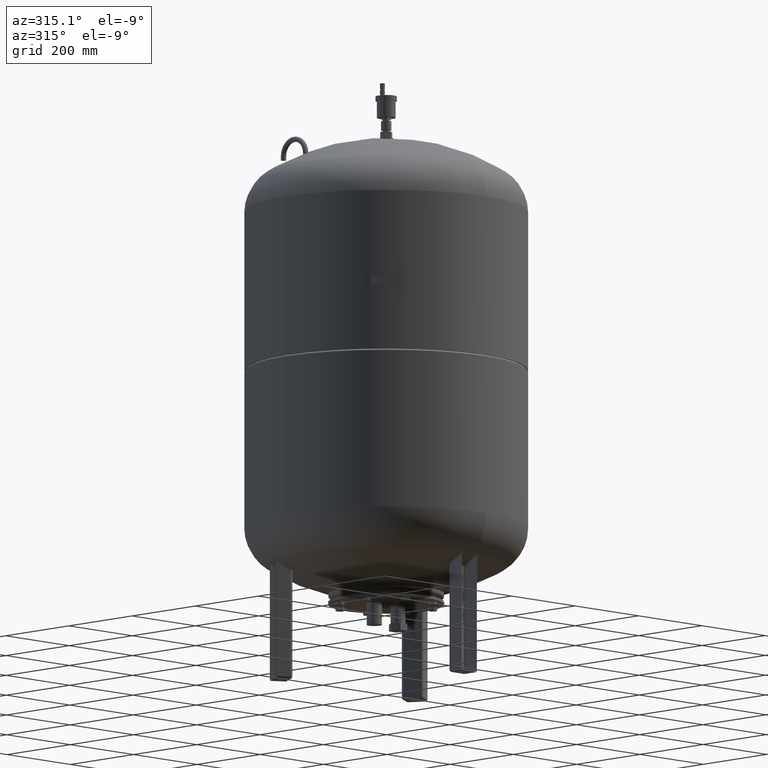
[diagram: clean part render]
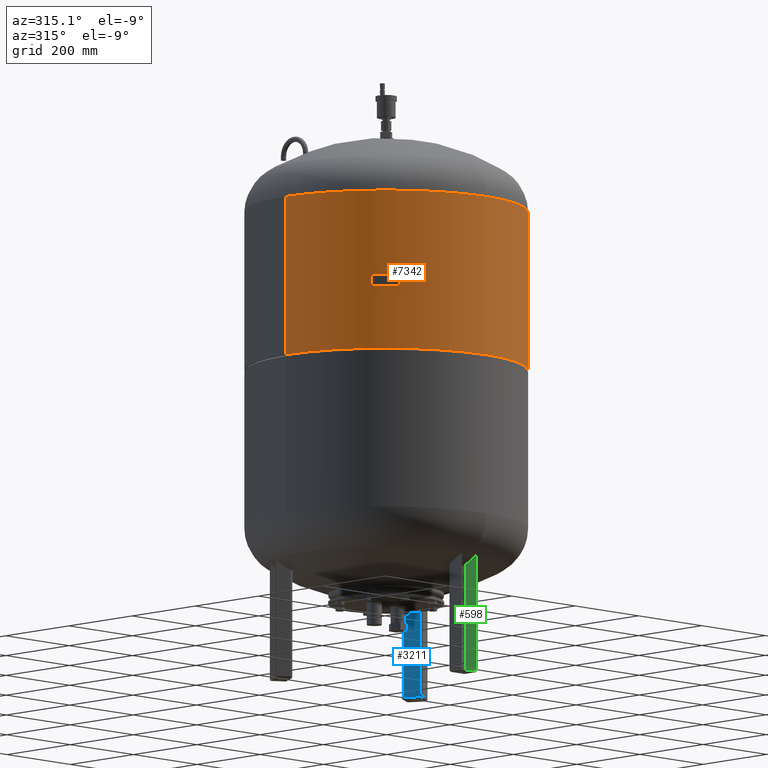
[diagram: same view with three faces highlighted in distinct colors, each labeled with its STEP entity id]
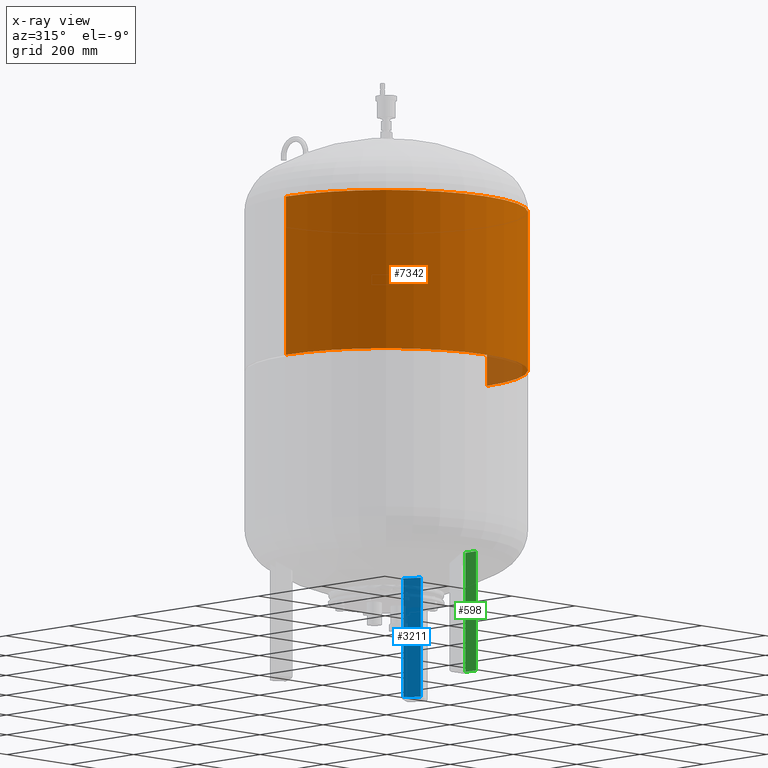
[diagram: x-ray of the same camera — body ghosted, the three highlighted faces saturated]
A machine part, auxiliary view with three faces highlighted in distinct colors.
The next image is the same camera in x-ray (body ghosted, the three faces saturated) — at least one of them is partly hidden behind the body in this view.
Their STEP definitions:

[orange] entity #7342 — the highlighted cylindrical surface (partial cylindrical patch) has radius 317 mm, axis along (0, 0, 1).
#7301=CARTESIAN_POINT('',(8.343982E-015,0.0,889.0));
#7302=DIRECTION('',(4.661443E-017,0.0,1.0));
#7303=DIRECTION('',(1.0,0.0,0.0));
#7304=AXIS2_PLACEMENT_3D('',#7301,#7302,#7303);
#7305=CYLINDRICAL_SURFACE('',#7304,317.0);
#7306=CARTESIAN_POINT('',(317.0,0.0,1068.0));
#7307=VERTEX_POINT('',#7306);
#7308=CARTESIAN_POINT('',(316.999999999999940,0.0,710.0));
#7309=VERTEX_POINT('',#7308);
#7310=CARTESIAN_POINT('',(317.0,0.0,1068.0));
#7311=DIRECTION('',(0.0,0.0,-1.0));
#7312=VECTOR('',#7311,358.0);
#7313=LINE('',#7310,#7312);
#7314=EDGE_CURVE('',#7307,#7309,#7313,.T.);
#7315=ORIENTED_EDGE('',*,*,#7314,.F.);
#7316=CARTESIAN_POINT('',(-317.0,-3.882002E-014,1068.0));
#7317=VERTEX_POINT('',#7316);
#7318=CARTESIAN_POINT('',(1.668796E-014,0.0,1068.0));
#7319=DIRECTION('',(0.0,0.0,1.0));
#7320=DIRECTION('',(1.0,0.0,0.0));
#7321=AXIS2_PLACEMENT_3D('',#7318,#7319,#7320);
#7322=CIRCLE('',#7321,317.0);
#7323=EDGE_CURVE('',#7317,#7307,#7322,.T.);
#7324=ORIENTED_EDGE('',*,*,#7323,.F.);
#7325=CARTESIAN_POINT('',(-317.0,-3.882002E-014,710.0));
#7326=VERTEX_POINT('',#7325);
#7327=CARTESIAN_POINT('',(-317.0,-3.882002E-014,1068.0));
#7328=DIRECTION('',(0.0,0.0,-1.0));
#7329=VECTOR('',#7328,358.0);
#7330=LINE('',#7327,#7329);
#7331=EDGE_CURVE('',#7317,#7326,#7330,.T.);
#7332=ORIENTED_EDGE('',*,*,#7331,.T.);
#7333=CARTESIAN_POINT('',(0.0,0.0,710.0));
#7334=DIRECTION('',(0.0,0.0,1.0));
#7335=DIRECTION('',(1.0,0.0,0.0));
#7336=AXIS2_PLACEMENT_3D('',#7333,#7334,#7335);
#7337=CIRCLE('',#7336,316.999999999999940);
#7338=EDGE_CURVE('',#7326,#7309,#7337,.T.);
#7339=ORIENTED_EDGE('',*,*,#7338,.T.);
#7340=EDGE_LOOP('',(#7315,#7324,#7332,#7339));
#7341=FACE_OUTER_BOUND('',#7340,.T.);
#7342=ADVANCED_FACE('',(#7341),#7305,.T.);

[blue] entity #3211 — the highlighted planar face has unit normal (-0.866, -0.5, -0).
#2395=CARTESIAN_POINT('',(182.690652342037650,128.570508075688760,274.0));
#2396=VERTEX_POINT('',#2395);
#2404=CARTESIAN_POINT('',(202.690652342037650,93.929491924311236,274.0));
#2405=VERTEX_POINT('',#2404);
#2406=CARTESIAN_POINT('',(202.690652342037650,93.929491924311236,274.0));
#2407=DIRECTION('',(-0.500000000000000,0.866025403784438,0.0));
#2408=VECTOR('',#2407,39.999999999999986);
#2409=LINE('',#2406,#2408);
#2410=EDGE_CURVE('',#2405,#2396,#2409,.T.);
#3076=CARTESIAN_POINT('',(202.690652342037650,93.929491924311222,4.999999999999996));
#3077=VERTEX_POINT('',#3076);
#3085=CARTESIAN_POINT('',(182.690652342037650,128.570508075688760,5.000000000000004));
#3086=VERTEX_POINT('',#3085);
#3087=CARTESIAN_POINT('',(202.690652342037650,93.929491924311222,4.999999999999996));
#3088=DIRECTION('',(-0.500000000000000,0.866025403784439,1.776357E-016));
#3089=VECTOR('',#3088,40.0);
#3090=LINE('',#3087,#3089);
#3091=EDGE_CURVE('',#3077,#3086,#3090,.T.);
#3179=CARTESIAN_POINT('',(182.690652342037650,128.570508075688760,5.000000000000004));
#3180=DIRECTION('',(0.0,0.0,1.0));
#3181=VECTOR('',#3180,269.0);
#3182=LINE('',#3179,#3181);
#3183=EDGE_CURVE('',#3086,#2396,#3182,.T.);
#3195=CARTESIAN_POINT('',(205.190652342037650,89.599364905389038,-4.592425E-015));
#3196=DIRECTION('',(-0.866025403784439,-0.500000000000000,-5.710451E-032));
#3197=DIRECTION('',(0.500000000000000,-0.866025403784439,-1.836970E-016));
#3198=AXIS2_PLACEMENT_3D('',#3195,#3196,#3197);
#3199=PLANE('',#3198);
#3200=ORIENTED_EDGE('',*,*,#3091,.F.);
#3201=CARTESIAN_POINT('',(202.690652342037650,93.929491924311222,4.999999999999996));
#3202=DIRECTION('',(0.0,0.0,1.0));
#3203=VECTOR('',#3202,269.0);
#3204=LINE('',#3201,#3203);
#3205=EDGE_CURVE('',#3077,#2405,#3204,.T.);
#3206=ORIENTED_EDGE('',*,*,#3205,.T.);
#3207=ORIENTED_EDGE('',*,*,#2410,.T.);
#3208=ORIENTED_EDGE('',*,*,#3183,.F.);
#3209=EDGE_LOOP('',(#3200,#3206,#3207,#3208));
#3210=FACE_OUTER_BOUND('',#3209,.T.);
#3211=ADVANCED_FACE('',(#3210),#3199,.T.);

[green] entity #598 — the highlighted planar face has unit normal (1, 0, 0).
#216=CARTESIAN_POINT('',(22.499999999999996,-227.500000000000000,274.0));
#217=VERTEX_POINT('',#216);
#225=CARTESIAN_POINT('',(22.499999999999989,-261.500000000000000,274.0));
#226=VERTEX_POINT('',#225);
#227=CARTESIAN_POINT('',(22.499999999999989,-261.500000000000000,274.0));
#228=DIRECTION('',(0.0,1.0,0.0));
#229=VECTOR('',#228,34.0);
#230=LINE('',#227,#229);
#231=EDGE_CURVE('',#226,#217,#230,.T.);
#316=CARTESIAN_POINT('',(22.499999999999996,-261.500000000000000,4.500000000000004));
#317=VERTEX_POINT('',#316);
#318=CARTESIAN_POINT('',(22.499999999999989,-261.500000000000000,274.0));
#319=DIRECTION('',(0.0,0.0,-1.0));
#320=VECTOR('',#319,269.500000000000000);
#321=LINE('',#318,#320);
#322=EDGE_CURVE('',#226,#317,#321,.T.);
#563=CARTESIAN_POINT('',(22.500000000000004,-227.500000000000000,4.500000000000004));
#564=VERTEX_POINT('',#563);
#565=CARTESIAN_POINT('',(22.499999999999996,-261.500000000000000,4.500000000000004));
#566=DIRECTION('',(0.0,1.0,0.0));
#567=VECTOR('',#566,34.0);
#568=LINE('',#565,#567);
#569=EDGE_CURVE('',#317,#564,#568,.T.);
#582=CARTESIAN_POINT('',(22.500000000000004,-225.0,2.000000000000004));
#583=DIRECTION('',(1.0,0.0,0.0));
#584=DIRECTION('',(0.0,1.0,0.0));
#585=AXIS2_PLACEMENT_3D('',#582,#583,#584);
#586=PLANE('',#585);
#587=ORIENTED_EDGE('',*,*,#322,.F.);
#588=ORIENTED_EDGE('',*,*,#231,.T.);
#589=CARTESIAN_POINT('',(22.500000000000004,-227.500000000000000,4.500000000000004));
#590=DIRECTION('',(0.0,0.0,1.0));
#591=VECTOR('',#590,269.500000000000000);
#592=LINE('',#589,#591);
#593=EDGE_CURVE('',#564,#217,#592,.T.);
#594=ORIENTED_EDGE('',*,*,#593,.F.);
#595=ORIENTED_EDGE('',*,*,#569,.F.);
#596=EDGE_LOOP('',(#587,#588,#594,#595));
#597=FACE_OUTER_BOUND('',#596,.T.);
#598=ADVANCED_FACE('',(#597),#586,.F.);